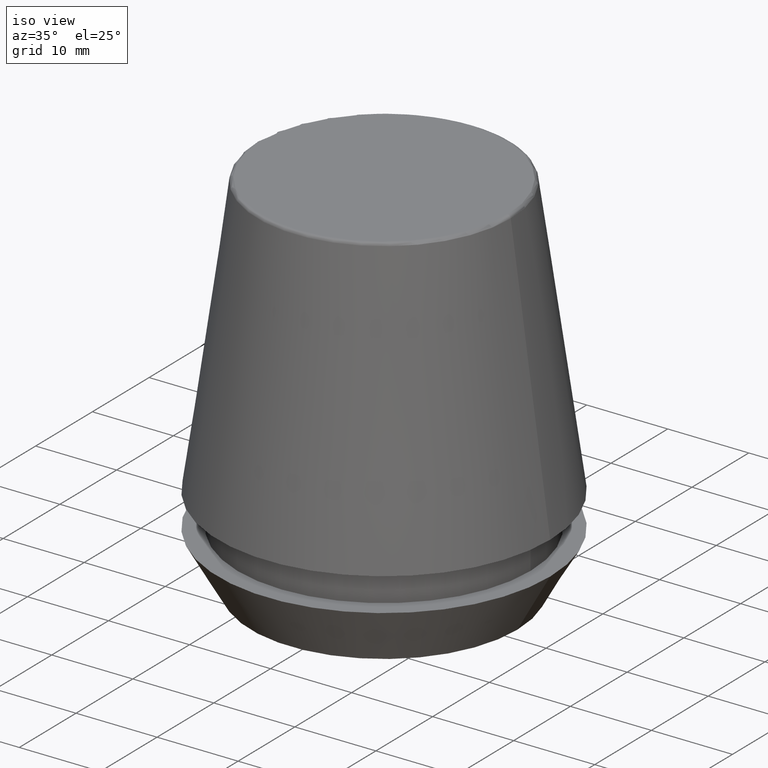
[diagram: clean part render]
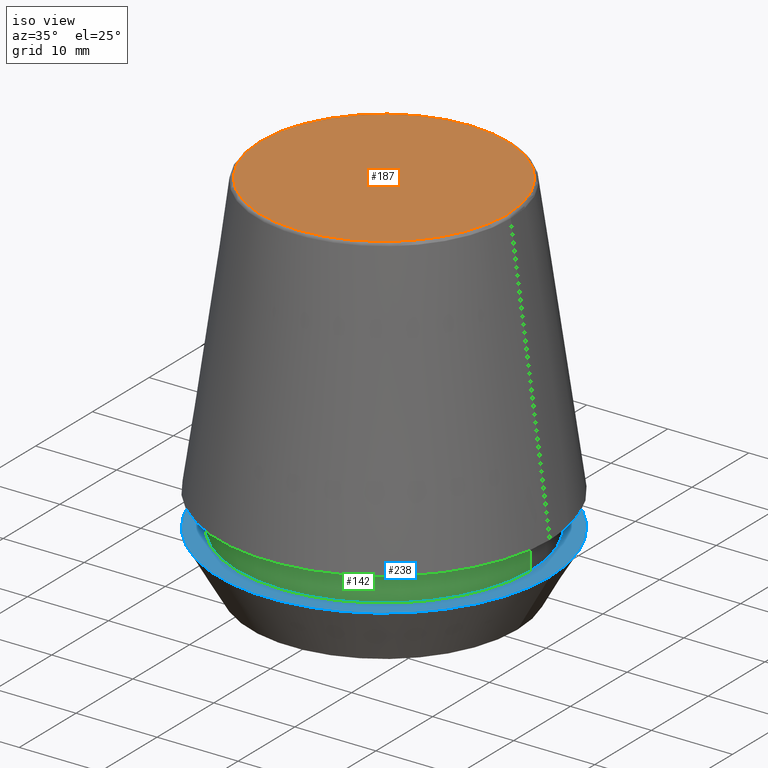
[diagram: same view with three faces highlighted in distinct colors, each labeled with its STEP entity id]
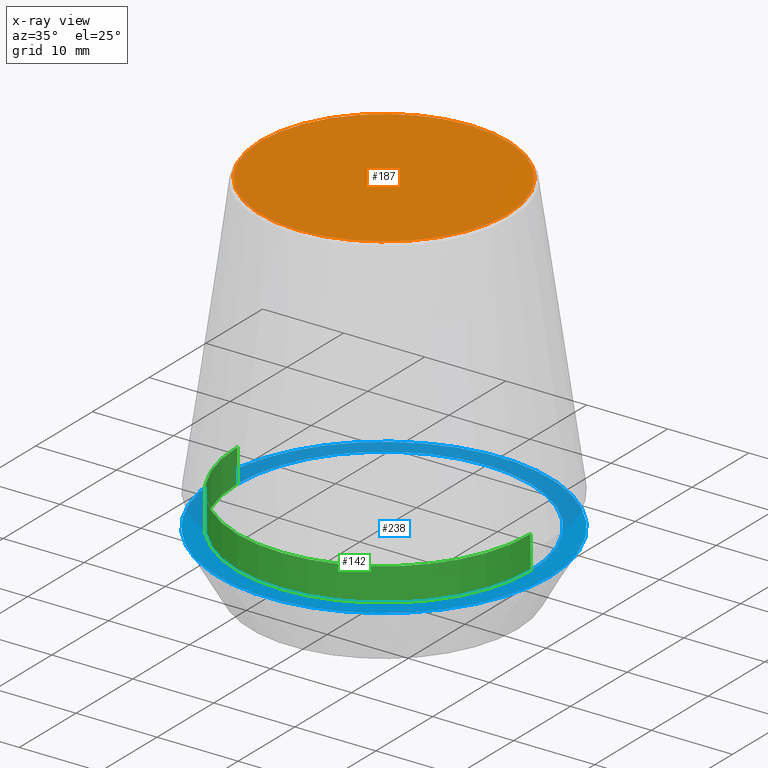
[diagram: x-ray of the same camera — body ghosted, the three highlighted faces saturated]
A machine part, iso view with three faces highlighted in distinct colors.
The next image is the same camera in x-ray (body ghosted, the three faces saturated) — at least one of them is partly hidden behind the body in this view.
Their STEP definitions:

[orange] entity #187 — the highlighted planar face has unit normal (0, 0, -1).
#12 = CARTESIAN_POINT ( 'NONE',  ( 0.0000000000000000000, 0.0000000000000000000, 46.00000000000000000 ) ) ;
#17 = EDGE_CURVE ( 'NONE', #165, #26, #155, .T. ) ;
#26 = VERTEX_POINT ( 'NONE', #280 ) ;
#42 = DIRECTION ( 'NONE',  ( -0.0000000000000000000, -0.0000000000000000000, 1.000000000000000000 ) ) ;
#104 = CIRCLE ( 'NONE', #205, 15.24773554530077600 ) ;
#127 = EDGE_CURVE ( 'NONE', #26, #165, #104, .T. ) ;
#134 = DIRECTION ( 'NONE',  ( -1.000000000000000000, 0.0000000000000000000, -0.0000000000000000000 ) ) ;
#149 = EDGE_LOOP ( 'NONE', ( #162, #185 ) ) ;
#155 = CIRCLE ( 'NONE', #288, 15.24773554530077600 ) ;
#162 = ORIENTED_EDGE ( 'NONE', *, *, #17, .T. ) ;
#165 = VERTEX_POINT ( 'NONE', #203 ) ;
#185 = ORIENTED_EDGE ( 'NONE', *, *, #127, .T. ) ;
#187 = ADVANCED_FACE ( 'NONE', ( #204 ), #374, .F. ) ;
#203 = CARTESIAN_POINT ( 'NONE',  ( 15.24773554530077600, 0.0000000000000000000, 46.00000000000000000 ) ) ;
#204 = FACE_OUTER_BOUND ( 'NONE', #149, .T. ) ;
#205 = AXIS2_PLACEMENT_3D ( 'NONE', #12, #42, #311 ) ;
#217 = CARTESIAN_POINT ( 'NONE',  ( 0.0000000000000000000, 0.0000000000000000000, 46.00000000000000000 ) ) ;
#220 = DIRECTION ( 'NONE',  ( -0.0000000000000000000, -0.0000000000000000000, 1.000000000000000000 ) ) ;
#265 = CARTESIAN_POINT ( 'NONE',  ( 0.0000000000000000000, 15.24773554530077600, 46.00000000000000000 ) ) ;
#267 = AXIS2_PLACEMENT_3D ( 'NONE', #265, #339, #134 ) ;
#280 = CARTESIAN_POINT ( 'NONE',  ( -15.24773554530077600, 1.891563625393435400E-015, 46.00000000000000000 ) ) ;
#288 = AXIS2_PLACEMENT_3D ( 'NONE', #217, #220, #347 ) ;
#311 = DIRECTION ( 'NONE',  ( 1.000000000000000000, 0.0000000000000000000, 0.0000000000000000000 ) ) ;
#339 = DIRECTION ( 'NONE',  ( 0.0000000000000000000, 0.0000000000000000000, -1.000000000000000000 ) ) ;
#347 = DIRECTION ( 'NONE',  ( 1.000000000000000000, 0.0000000000000000000, 0.0000000000000000000 ) ) ;
#374 = PLANE ( 'NONE',  #267 ) ;

[blue] entity #238 — the highlighted planar face has unit normal (0, 0, -1).
#3 = CARTESIAN_POINT ( 'NONE',  ( -20.50000000000000000, 2.510525938252074100E-015, 7.000000000000006200 ) ) ;
#6 = ORIENTED_EDGE ( 'NONE', *, *, #98, .F. ) ;
#29 = EDGE_LOOP ( 'NONE', ( #45, #6 ) ) ;
#41 = DIRECTION ( 'NONE',  ( -0.0000000000000000000, -0.0000000000000000000, 1.000000000000000000 ) ) ;
#45 = ORIENTED_EDGE ( 'NONE', *, *, #296, .F. ) ;
#68 = VERTEX_POINT ( 'NONE', #3 ) ;
#78 = DIRECTION ( 'NONE',  ( -0.0000000000000000000, -0.0000000000000000000, 1.000000000000000000 ) ) ;
#79 = DIRECTION ( 'NONE',  ( -1.000000000000000000, 0.0000000000000000000, -0.0000000000000000000 ) ) ;
#96 = VERTEX_POINT ( 'NONE', #160 ) ;
#98 = EDGE_CURVE ( 'NONE', #141, #177, #125, .T. ) ;
#99 = CARTESIAN_POINT ( 'NONE',  ( 0.0000000000000000000, 0.0000000000000000000, 7.000000000000006200 ) ) ;
#113 = CIRCLE ( 'NONE', #268, 20.50000000000000000 ) ;
#124 = DIRECTION ( 'NONE',  ( -0.0000000000000000000, -0.0000000000000000000, 1.000000000000000000 ) ) ;
#125 = CIRCLE ( 'NONE', #364, 18.10000000000000100 ) ;
#136 = EDGE_CURVE ( 'NONE', #68, #96, #113, .T. ) ;
#141 = VERTEX_POINT ( 'NONE', #284 ) ;
#157 = CIRCLE ( 'NONE', #317, 18.10000000000000100 ) ;
#160 = CARTESIAN_POINT ( 'NONE',  ( 20.50000000000000000, 0.0000000000000000000, 7.000000000000006200 ) ) ;
#166 = DIRECTION ( 'NONE',  ( 1.000000000000000000, 0.0000000000000000000, 0.0000000000000000000 ) ) ;
#173 = PLANE ( 'NONE',  #221 ) ;
#177 = VERTEX_POINT ( 'NONE', #231 ) ;
#221 = AXIS2_PLACEMENT_3D ( 'NONE', #373, #318, #79 ) ;
#228 = CARTESIAN_POINT ( 'NONE',  ( 0.0000000000000000000, 0.0000000000000000000, 6.999999999999999100 ) ) ;
#231 = CARTESIAN_POINT ( 'NONE',  ( 18.10000000000000100, 0.0000000000000000000, 6.999999999999999100 ) ) ;
#238 = ADVANCED_FACE ( 'NONE', ( #259, #360 ), #173, .F. ) ;
#256 = AXIS2_PLACEMENT_3D ( 'NONE', #316, #78, #340 ) ;
#259 = FACE_BOUND ( 'NONE', #29, .T. ) ;
#263 = DIRECTION ( 'NONE',  ( 1.000000000000000000, 0.0000000000000000000, 0.0000000000000000000 ) ) ;
#268 = AXIS2_PLACEMENT_3D ( 'NONE', #99, #335, #166 ) ;
#273 = EDGE_CURVE ( 'NONE', #96, #68, #376, .T. ) ;
#284 = CARTESIAN_POINT ( 'NONE',  ( -18.10000000000000100, 2.216610706456709600E-015, 6.999999999999999100 ) ) ;
#296 = EDGE_CURVE ( 'NONE', #177, #141, #157, .T. ) ;
#305 = DIRECTION ( 'NONE',  ( 1.000000000000000000, 0.0000000000000000000, 0.0000000000000000000 ) ) ;
#316 = CARTESIAN_POINT ( 'NONE',  ( 0.0000000000000000000, 0.0000000000000000000, 7.000000000000006200 ) ) ;
#317 = AXIS2_PLACEMENT_3D ( 'NONE', #332, #124, #305 ) ;
#318 = DIRECTION ( 'NONE',  ( 0.0000000000000000000, 0.0000000000000000000, -1.000000000000000000 ) ) ;
#324 = ORIENTED_EDGE ( 'NONE', *, *, #273, .T. ) ;
#332 = CARTESIAN_POINT ( 'NONE',  ( 0.0000000000000000000, 0.0000000000000000000, 6.999999999999999100 ) ) ;
#335 = DIRECTION ( 'NONE',  ( -0.0000000000000000000, -0.0000000000000000000, 1.000000000000000000 ) ) ;
#340 = DIRECTION ( 'NONE',  ( 1.000000000000000000, 0.0000000000000000000, 0.0000000000000000000 ) ) ;
#360 = FACE_OUTER_BOUND ( 'NONE', #378, .T. ) ;
#364 = AXIS2_PLACEMENT_3D ( 'NONE', #228, #41, #263 ) ;
#371 = ORIENTED_EDGE ( 'NONE', *, *, #136, .T. ) ;
#373 = CARTESIAN_POINT ( 'NONE',  ( 0.0000000000000000000, 20.50000000000000000, 7.000000000000002700 ) ) ;
#376 = CIRCLE ( 'NONE', #256, 20.50000000000000000 ) ;
#378 = EDGE_LOOP ( 'NONE', ( #324, #371 ) ) ;

[green] entity #142 — the highlighted cylindrical surface (partial cylindrical patch) has radius 18.1 mm, axis along (-0, -0, 1).
#41 = DIRECTION ( 'NONE',  ( -0.0000000000000000000, -0.0000000000000000000, 1.000000000000000000 ) ) ;
#43 = DIRECTION ( 'NONE',  ( -0.0000000000000000000, -0.0000000000000000000, 1.000000000000000000 ) ) ;
#56 = EDGE_CURVE ( 'NONE', #208, #327, #194, .T. ) ;
#60 = EDGE_LOOP ( 'NONE', ( #77, #247, #211, #387 ) ) ;
#77 = ORIENTED_EDGE ( 'NONE', *, *, #143, .F. ) ;
#98 = EDGE_CURVE ( 'NONE', #141, #177, #125, .T. ) ;
#102 = CARTESIAN_POINT ( 'NONE',  ( 18.10000000000000500, 0.0000000000000000000, 46.00000000000000000 ) ) ;
#111 = LINE ( 'NONE', #313, #366 ) ;
#117 = CYLINDRICAL_SURFACE ( 'NONE', #144, 18.10000000000000500 ) ;
#125 = CIRCLE ( 'NONE', #364, 18.10000000000000100 ) ;
#126 = DIRECTION ( 'NONE',  ( -0.0000000000000000000, -0.0000000000000000000, 1.000000000000000000 ) ) ;
#128 = FACE_OUTER_BOUND ( 'NONE', #60, .T. ) ;
#130 = DIRECTION ( 'NONE',  ( -0.0000000000000000000, -0.0000000000000000000, 1.000000000000000000 ) ) ;
#141 = VERTEX_POINT ( 'NONE', #284 ) ;
#142 = ADVANCED_FACE ( 'NONE', ( #128 ), #117, .T. ) ;
#143 = EDGE_CURVE ( 'NONE', #141, #208, #111, .T. ) ;
#144 = AXIS2_PLACEMENT_3D ( 'NONE', #285, #43, #163 ) ;
#163 = DIRECTION ( 'NONE',  ( 1.000000000000000000, 0.0000000000000000000, 0.0000000000000000000 ) ) ;
#177 = VERTEX_POINT ( 'NONE', #231 ) ;
#180 = EDGE_CURVE ( 'NONE', #177, #327, #241, .T. ) ;
#194 = CIRCLE ( 'NONE', #379, 18.10000000000000500 ) ;
#208 = VERTEX_POINT ( 'NONE', #319 ) ;
#211 = ORIENTED_EDGE ( 'NONE', *, *, #180, .T. ) ;
#228 = CARTESIAN_POINT ( 'NONE',  ( 0.0000000000000000000, 0.0000000000000000000, 6.999999999999999100 ) ) ;
#231 = CARTESIAN_POINT ( 'NONE',  ( 18.10000000000000100, 0.0000000000000000000, 6.999999999999999100 ) ) ;
#241 = LINE ( 'NONE', #102, #292 ) ;
#247 = ORIENTED_EDGE ( 'NONE', *, *, #98, .T. ) ;
#257 = CARTESIAN_POINT ( 'NONE',  ( 18.10000000000000500, 0.0000000000000000000, 11.09999999999999800 ) ) ;
#263 = DIRECTION ( 'NONE',  ( 1.000000000000000000, 0.0000000000000000000, 0.0000000000000000000 ) ) ;
#270 = DIRECTION ( 'NONE',  ( -0.0000000000000000000, -0.0000000000000000000, 1.000000000000000000 ) ) ;
#284 = CARTESIAN_POINT ( 'NONE',  ( -18.10000000000000100, 2.216610706456709600E-015, 6.999999999999999100 ) ) ;
#285 = CARTESIAN_POINT ( 'NONE',  ( 0.0000000000000000000, 0.0000000000000000000, 46.00000000000000000 ) ) ;
#292 = VECTOR ( 'NONE', #270, 1000.000000000000000 ) ;
#307 = CARTESIAN_POINT ( 'NONE',  ( 0.0000000000000000000, 0.0000000000000000000, 11.09999999999999800 ) ) ;
#313 = CARTESIAN_POINT ( 'NONE',  ( -18.10000000000000500, 2.216610706456710000E-015, 46.00000000000000000 ) ) ;
#319 = CARTESIAN_POINT ( 'NONE',  ( -18.10000000000000500, 2.216610706456710000E-015, 11.09999999999999800 ) ) ;
#327 = VERTEX_POINT ( 'NONE', #257 ) ;
#333 = DIRECTION ( 'NONE',  ( 1.000000000000000000, 0.0000000000000000000, 0.0000000000000000000 ) ) ;
#364 = AXIS2_PLACEMENT_3D ( 'NONE', #228, #41, #263 ) ;
#366 = VECTOR ( 'NONE', #130, 1000.000000000000000 ) ;
#379 = AXIS2_PLACEMENT_3D ( 'NONE', #307, #126, #333 ) ;
#387 = ORIENTED_EDGE ( 'NONE', *, *, #56, .F. ) ;